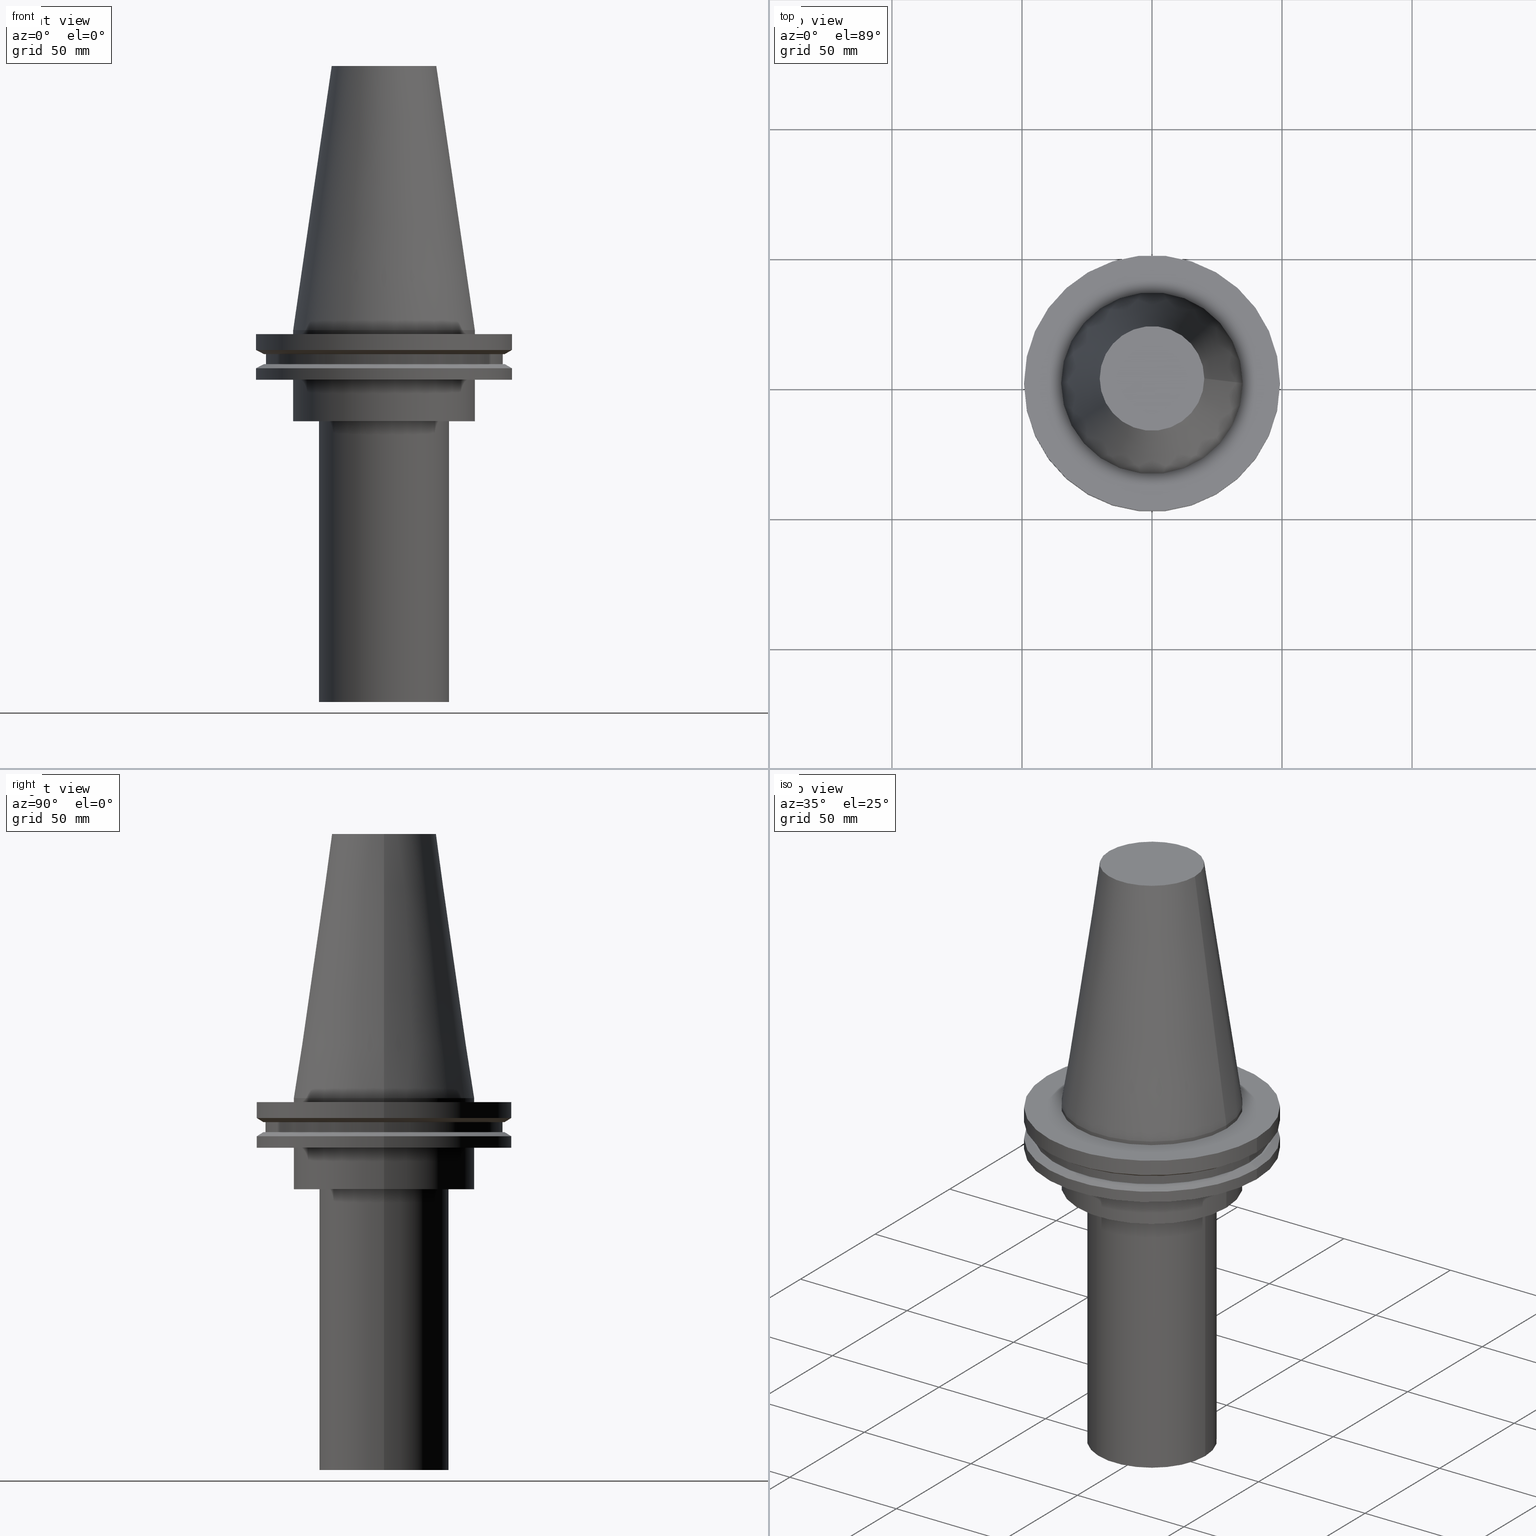
[diagram: canonical four-view strip — front | top / right | iso, engineering-drawing reading convention]
A machine part, canonical four-view strip (front | top / right | iso — engineering-drawing reading convention). The complete STEP part file that produces these views, byte-faithful:
ISO-10303-21;
HEADER;
FILE_DESCRIPTION (( 'STEP AP203' ),
    '1' );
FILE_NAME ('11.368.654.stp',
    '2022-03-09T15:21:08',
    ( '' ),
    ( '' ),
    'SwSTEP 2.0',
    'SolidWorks 2021',
    '' );
FILE_SCHEMA (( 'CONFIG_CONTROL_DESIGN' ));
ENDSEC;

DATA;
#1 = PERSON ( 'UNSPECIFIED', 'UNSPECIFIED', 'UNSPECIFIED', ('UNSPECIFIED'), ('UNSPECIFIED'), ('UNSPECIFIED') ) ;
#2 = PLANE ( 'NONE',  #250 ) ;
#3 = PLANE ( 'NONE',  #393 ) ;
#4 = CIRCLE ( 'NONE', #86, 49.21499999999998920 ) ;
#5 = DIRECTION ( 'NONE',  ( 1.000000000000000000, 0.000000000000000000, 0.000000000000000000 ) ) ;
#6 = CC_DESIGN_SECURITY_CLASSIFICATION ( #162, ( #347 ) ) ;
#7 = EDGE_CURVE ( 'NONE', #302, #302, #285, .T. ) ;
#8 = CARTESIAN_POINT ( 'NONE',  ( 0.000000000000000000, 0.000000000000000000, -7.602389855251287187 ) ) ;
#9 = CARTESIAN_POINT ( 'NONE',  ( 0.000000000000000000, 0.000000000000000000, 0.000000000000000000 ) ) ;
#10 = CARTESIAN_POINT ( 'NONE',  ( 49.21499999999998920, 0.000000000000000000, -14.65761014474876944 ) ) ;
#11 = MANIFOLD_SOLID_BREP ( 'CKB', #140 ) ;
#12 = CARTESIAN_POINT ( 'NONE',  ( 0.000000000000000000, 0.000000000000000000, 101.5999999999999943 ) ) ;
#13 = PERSON_AND_ORGANIZATION_ROLE ( 'creator' ) ;
#14 = CIRCLE ( 'NONE', #333, 34.92499999999999716 ) ;
#15 = ADVANCED_FACE ( 'NONE', ( #245, #247 ), #272, .F. ) ;
#16 = AXIS2_PLACEMENT_3D ( 'NONE', #103, #131, #128 ) ;
#17 = COORDINATED_UNIVERSAL_TIME_OFFSET ( 6, 0, .BEHIND. ) ;
#18 = CALENDAR_DATE ( 2022, 9, 3 ) ;
#19 = APPROVAL_STATUS ( 'not_yet_approved' ) ;
#20 = PRODUCT_DEFINITION ( 'UNKNOWN', '', #347, #360 ) ;
#21 = CARTESIAN_POINT ( 'NONE',  ( 0.000000000000000000, 0.000000000000000000, -9.204999999999991189 ) ) ;
#22 = DIRECTION ( 'NONE',  ( -0.000000000000000000, -0.000000000000000000, 1.000000000000000000 ) ) ;
#23 = ORIENTED_EDGE ( 'NONE', *, *, #76, .F. ) ;
#24 = ADVANCED_FACE ( 'NONE', ( #184, #96 ), #211, .T. ) ;
#25 = AXIS2_PLACEMENT_3D ( 'NONE', #82, #392, #53 ) ;
#26 = FACE_OUTER_BOUND ( 'NONE', #181, .T. ) ;
#27 = EDGE_LOOP ( 'NONE', ( #385 ) ) ;
#28 = DIRECTION ( 'NONE',  ( 1.000000000000000000, 0.000000000000000000, 0.000000000000000000 ) ) ;
#29 = EDGE_LOOP ( 'NONE', ( #146 ) ) ;
#30 = APPLICATION_CONTEXT ( 'configuration controlled 3d designs of mechanical parts and assemblies' ) ;
#31 = ADVANCED_FACE ( 'NONE', ( #125, #337 ), #3, .F. ) ;
#32 = ORIENTED_EDGE ( 'NONE', *, *, #283, .T. ) ;
#33 = PRODUCT_DEFINITION_SHAPE ( 'NONE', 'NONE',  #20 ) ;
#34 = LOCAL_TIME ( 9, 21, 8.000000000000000000, #134 ) ;
#35 = DIRECTION ( 'NONE',  ( 1.000000000000000000, 0.000000000000000000, 0.000000000000000000 ) ) ;
#36 = VERTEX_POINT ( 'NONE', #366 ) ;
#37 = FACE_BOUND ( 'NONE', #382, .T. ) ;
#38 = DIRECTION ( 'NONE',  ( -0.000000000000000000, -0.000000000000000000, 1.000000000000000000 ) ) ;
#39 = ADVANCED_FACE ( 'NONE', ( #370, #216 ), #100, .F. ) ;
#40 = DIRECTION ( 'NONE',  ( -0.000000000000000000, -0.000000000000000000, 1.000000000000000000 ) ) ;
#41 = VERTEX_POINT ( 'NONE', #276 ) ;
#42 = APPROVAL ( #313, 'UNSPECIFIED' ) ;
#43 = DIRECTION ( 'NONE',  ( 1.000000000000000000, 0.000000000000000000, 0.000000000000000000 ) ) ;
#44 = APPROVAL_DATE_TIME ( #220, #42 ) ;
#45 = ADVANCED_FACE ( 'NONE', ( #66, #305 ), #341, .T. ) ;
#46 = APPLICATION_PROTOCOL_DEFINITION ( 'international standard', 'config_control_design', 1994, #110 ) ;
#47 = DIRECTION ( 'NONE',  ( 0.000000000000000000, 0.000000000000000000, -1.000000000000000000 ) ) ;
#48 = DIRECTION ( 'NONE',  ( -1.000000000000000000, 0.000000000000000000, -0.000000000000000000 ) ) ;
#49 = CC_DESIGN_DATE_AND_TIME_ASSIGNMENT ( #73, #344, ( #162 ) ) ;
#50 = EDGE_LOOP ( 'NONE', ( #179 ) ) ;
#51 = DIRECTION ( 'NONE',  ( 1.000000000000000000, 0.000000000000000000, 0.000000000000000000 ) ) ;
#52 = ORIENTED_EDGE ( 'NONE', *, *, #309, .T. ) ;
#53 = DIRECTION ( 'NONE',  ( 1.000000000000000000, 0.000000000000000000, 0.000000000000000000 ) ) ;
#54 = EDGE_LOOP ( 'NONE', ( #57 ) ) ;
#55 = ADVANCED_FACE ( 'NONE', ( #373, #375 ), #280, .T. ) ;
#56 = FACE_OUTER_BOUND ( 'NONE', #178, .T. ) ;
#57 = ORIENTED_EDGE ( 'NONE', *, *, #69, .T. ) ;
#58 = CARTESIAN_POINT ( 'NONE',  ( 0.000000000000000000, 0.000000000000000000, -13.05499999999999794 ) ) ;
#59 = ORIENTED_EDGE ( 'NONE', *, *, #358, .F. ) ;
#60 = CARTESIAN_POINT ( 'NONE',  ( 34.92499999999999716, 0.000000000000000000, -35.00000000000000000 ) ) ;
#61 = AXIS2_PLACEMENT_3D ( 'NONE', #339, #275, #311 ) ;
#62 = DIRECTION ( 'NONE',  ( 1.000000000000000000, 0.000000000000000000, 0.000000000000000000 ) ) ;
#63 = VERTEX_POINT ( 'NONE', #60 ) ;
#64 = CARTESIAN_POINT ( 'NONE',  ( 0.000000000000000000, 49.21499999999998920, -19.04999999999999716 ) ) ;
#65 = CARTESIAN_POINT ( 'NONE',  ( 0.000000000000000000, 0.000000000000000000, 0.000000000000000000 ) ) ;
#66 = FACE_OUTER_BOUND ( 'NONE', #29, .T. ) ;
#67 = CARTESIAN_POINT ( 'NONE',  ( 34.92499999999999005, 0.000000000000000000, -1.499999999999987566 ) ) ;
#68 = FACE_OUTER_BOUND ( 'NONE', #203, .T. ) ;
#69 = EDGE_CURVE ( 'NONE', #41, #41, #227, .T. ) ;
#70 = PERSON_AND_ORGANIZATION_ROLE ( 'creator' ) ;
#71 = DIRECTION ( 'NONE',  ( 1.000000000000000000, 0.000000000000000000, 0.000000000000000000 ) ) ;
#72 = APPROVAL_STATUS ( 'not_yet_approved' ) ;
#73 = DATE_AND_TIME ( #18, #300 ) ;
#74 = AXIS2_PLACEMENT_3D ( 'NONE', #12, #133, #62 ) ;
#75 = CALENDAR_DATE ( 2022, 9, 3 ) ;
#76 = EDGE_CURVE ( 'NONE', #63, #63, #335, .T. ) ;
#77 = PERSON_AND_ORGANIZATION ( #1, #361 ) ;
#78 = CIRCLE ( 'NONE', #352, 25.00000000000000000 ) ;
#79 = AXIS2_PLACEMENT_3D ( 'NONE', #223, #221, #43 ) ;
#80 = FACE_OUTER_BOUND ( 'NONE', #118, .T. ) ;
#81 = ORIENTED_EDGE ( 'NONE', *, *, #351, .F. ) ;
#82 = CARTESIAN_POINT ( 'NONE',  ( 0.000000000000000000, 25.00000000000000000, -143.0000000000000000 ) ) ;
#83 = EDGE_LOOP ( 'NONE', ( #292 ) ) ;
#84 = FACE_OUTER_BOUND ( 'NONE', #205, .T. ) ;
#85 = CIRCLE ( 'NONE', #102, 45.64500000000000313 ) ;
#86 = AXIS2_PLACEMENT_3D ( 'NONE', #254, #232, #173 ) ;
#87 = AXIS2_PLACEMENT_3D ( 'NONE', #58, #244, #374 ) ;
#88 = CARTESIAN_POINT ( 'NONE',  ( 0.000000000000000000, 0.000000000000000000, -13.05499999999999794 ) ) ;
#89 = EDGE_LOOP ( 'NONE', ( #81 ) ) ;
#90 = CARTESIAN_POINT ( 'NONE',  ( 0.000000000000000000, 20.10819343178871321, 101.5999999999999943 ) ) ;
#91 = ORIENTED_EDGE ( 'NONE', *, *, #309, .F. ) ;
#92 = VERTEX_POINT ( 'NONE', #185 ) ;
#93 = FACE_OUTER_BOUND ( 'NONE', #27, .T. ) ;
#94 = ADVANCED_FACE ( 'NONE', ( #68, #93 ), #189, .T. ) ;
#95 = VERTEX_POINT ( 'NONE', #248 ) ;
#96 = FACE_OUTER_BOUND ( 'NONE', #120, .T. ) ;
#97 = VERTEX_POINT ( 'NONE', #274 ) ;
#98 = DIRECTION ( 'NONE',  ( 0.000000000000000000, 0.000000000000000000, -1.000000000000000000 ) ) ;
#99 = VERTEX_POINT ( 'NONE', #215 ) ;
#100 = PLANE ( 'NONE',  #115 ) ;
#101 = ADVANCED_FACE ( 'NONE', ( #218, #191 ), #157, .F. ) ;
#102 = AXIS2_PLACEMENT_3D ( 'NONE', #88, #353, #177 ) ;
#103 = CARTESIAN_POINT ( 'NONE',  ( 0.000000000000000000, 0.000000000000000000, 101.5999999999999943 ) ) ;
#104 = PERSON_AND_ORGANIZATION_ROLE ( 'design_owner' ) ;
#105 = APPROVAL_DATE_TIME ( #251, #368 ) ;
#106 = APPROVAL_ROLE ( '' ) ;
#107 = ADVANCED_FACE ( 'NONE', ( #37, #56 ), #384, .F. ) ;
#108 = APPROVAL_PERSON_ORGANIZATION ( #379, #331, #281 ) ;
#109 = PERSON_AND_ORGANIZATION_ROLE ( 'design_supplier' ) ;
#110 = APPLICATION_CONTEXT ( 'configuration controlled 3d designs of mechanical parts and assemblies' ) ;
#111 = ADVANCED_FACE ( 'NONE', ( #26, #84 ), #288, .T. ) ;
#112 = CYLINDRICAL_SURFACE ( 'NONE', #298, 49.21499999999999631 ) ;
#113 = EDGE_LOOP ( 'NONE', ( #365 ) ) ;
#114 = CC_DESIGN_APPROVAL ( #368, ( #162 ) ) ;
#115 = AXIS2_PLACEMENT_3D ( 'NONE', #64, #303, #71 ) ;
#116 = DIRECTION ( 'NONE',  ( 1.000000000000000000, 0.000000000000000000, 0.000000000000000000 ) ) ;
#117 = ORIENTED_EDGE ( 'NONE', *, *, #214, .F. ) ;
#118 = EDGE_LOOP ( 'NONE', ( #294 ) ) ;
#119 = CARTESIAN_POINT ( 'NONE',  ( 0.000000000000000000, 0.000000000000000000, -9.204999999999991189 ) ) ;
#120 = EDGE_LOOP ( 'NONE', ( #226 ) ) ;
#121 = AXIS2_PLACEMENT_3D ( 'NONE', #387, #228, #116 ) ;
#122 = FACE_OUTER_BOUND ( 'NONE', #296, .T. ) ;
#123 = EDGE_LOOP ( 'NONE', ( #328 ) ) ;
#124 = DIRECTION ( 'NONE',  ( 1.000000000000000000, 0.000000000000000000, 0.000000000000000000 ) ) ;
#125 = FACE_BOUND ( 'NONE', #289, .T. ) ;
#126 = CC_DESIGN_PERSON_AND_ORGANIZATION_ASSIGNMENT ( #77, #137, ( #162 ) ) ;
#127 = DIRECTION ( 'NONE',  ( -0.000000000000000000, -0.000000000000000000, 1.000000000000000000 ) ) ;
#128 = DIRECTION ( 'NONE',  ( 1.000000000000000000, 0.000000000000000000, 0.000000000000000000 ) ) ;
#129 = CIRCLE ( 'NONE', #208, 20.10819343178871321 ) ;
#130 = DIRECTION ( 'NONE',  ( 1.000000000000000000, 0.000000000000000000, 0.000000000000000000 ) ) ;
#131 = DIRECTION ( 'NONE',  ( -0.000000000000000000, -0.000000000000000000, 1.000000000000000000 ) ) ;
#132 = CARTESIAN_POINT ( 'NONE',  ( 49.21500000000000341, 0.000000000000000000, -7.602389855251287187 ) ) ;
#133 = DIRECTION ( 'NONE',  ( -0.000000000000000000, -0.000000000000000000, 1.000000000000000000 ) ) ;
#134 = COORDINATED_UNIVERSAL_TIME_OFFSET ( 6, 0, .BEHIND. ) ;
#135 = CALENDAR_DATE ( 2022, 9, 3 ) ;
#136 = EDGE_CURVE ( 'NONE', #36, #36, #4, .T. ) ;
#137 = PERSON_AND_ORGANIZATION_ROLE ( 'classification_officer' ) ;
#138 = AXIS2_PLACEMENT_3D ( 'NONE', #389, #355, #264 ) ;
#139 = CIRCLE ( 'NONE', #314, 49.21499999999999631 ) ;
#140 = CLOSED_SHELL ( 'NONE', ( #55, #316, #31, #94, #39, #142, #167, #101, #45, #15, #199, #235, #107, #24, #111, #175 ) ) ;
#141 = PERSON_AND_ORGANIZATION ( #1, #361 ) ;
#142 = ADVANCED_FACE ( 'NONE', ( #230, #201 ), #153, .T. ) ;
#143 = DIRECTION ( 'NONE',  ( 1.000000000000000000, 0.000000000000000000, 0.000000000000000000 ) ) ;
#144 = EDGE_LOOP ( 'NONE', ( #265 ) ) ;
#145 = ADVANCED_BREP_SHAPE_REPRESENTATION ( '11.368.654', ( #11, #79 ), #165 ) ;
#146 = ORIENTED_EDGE ( 'NONE', *, *, #69, .F. ) ;
#147 = LOCAL_TIME ( 9, 21, 8.000000000000000000, #170 ) ;
#148 = DIRECTION ( 'NONE',  ( 1.000000000000000000, 0.000000000000000000, 0.000000000000000000 ) ) ;
#149 = EDGE_LOOP ( 'NONE', ( #59 ) ) ;
#150 = CC_DESIGN_PERSON_AND_ORGANIZATION_ASSIGNMENT ( #345, #104, ( #268 ) ) ;
#151 = CARTESIAN_POINT ( 'NONE',  ( 0.000000000000000000, 0.000000000000000000, -19.04999999999999716 ) ) ;
#152 = ORIENTED_EDGE ( 'NONE', *, *, #283, .F. ) ;
#153 = CYLINDRICAL_SURFACE ( 'NONE', #138, 49.21499999999998920 ) ;
#154 = ORIENTED_EDGE ( 'NONE', *, *, #346, .T. ) ;
#155 = CONICAL_SURFACE ( 'NONE', #376, 46.43919780457007818, 1.047197551196575205 ) ;
#156 = APPROVAL_PERSON_ORGANIZATION ( #193, #368, #106 ) ;
#157 = PLANE ( 'NONE',  #209 ) ;
#158 = VERTEX_POINT ( 'NONE', #132 ) ;
#159 = DIRECTION ( 'NONE',  ( 0.000000000000000000, -0.000000000000000000, 1.000000000000000000 ) ) ;
#160 = CARTESIAN_POINT ( 'NONE',  ( 25.00000000000000000, 0.000000000000000000, -35.00000000000000000 ) ) ;
#161 = AXIS2_PLACEMENT_3D ( 'NONE', #119, #286, #362 ) ;
#162 = SECURITY_CLASSIFICATION ( '', '', #349 ) ;
#163 = VERTEX_POINT ( 'NONE', #160 ) ;
#164 = DIRECTION ( 'NONE',  ( -0.000000000000000000, -0.000000000000000000, 1.000000000000000000 ) ) ;
#165 =( GEOMETRIC_REPRESENTATION_CONTEXT ( 3 ) GLOBAL_UNCERTAINTY_ASSIGNED_CONTEXT ( ( #257 ) ) GLOBAL_UNIT_ASSIGNED_CONTEXT ( ( #304, #395, #212 ) ) REPRESENTATION_CONTEXT ( 'NONE', 'WORKASPACE' ) );
#166 = AXIS2_PLACEMENT_3D ( 'NONE', #307, #40, #278 ) ;
#167 = ADVANCED_FACE ( 'NONE', ( #290, #80 ), #233, .T. ) ;
#168 = CALENDAR_DATE ( 2022, 9, 3 ) ;
#169 = PRODUCT_RELATED_PRODUCT_CATEGORY ( 'detail', '', ( #268 ) ) ;
#170 = COORDINATED_UNIVERSAL_TIME_OFFSET ( 6, 0, .BEHIND. ) ;
#171 = CALENDAR_DATE ( 2022, 9, 3 ) ;
#172 = FACE_BOUND ( 'NONE', #356, .T. ) ;
#173 = DIRECTION ( 'NONE',  ( 1.000000000000000000, 0.000000000000000000, 0.000000000000000000 ) ) ;
#174 = ORIENTED_EDGE ( 'NONE', *, *, #187, .F. ) ;
#175 = ADVANCED_FACE ( 'NONE', ( #381 ), #260, .F. ) ;
#176 = CC_DESIGN_APPROVAL ( #42, ( #20 ) ) ;
#177 = DIRECTION ( 'NONE',  ( 1.000000000000000000, 0.000000000000000000, 0.000000000000000000 ) ) ;
#178 = EDGE_LOOP ( 'NONE', ( #154 ) ) ;
#179 = ORIENTED_EDGE ( 'NONE', *, *, #187, .T. ) ;
#180 = EDGE_CURVE ( 'NONE', #99, #99, #323, .T. ) ;
#181 = EDGE_LOOP ( 'NONE', ( #322 ) ) ;
#182 = DIRECTION ( 'NONE',  ( -1.000000000000000000, 0.000000000000000000, -0.000000000000000000 ) ) ;
#183 = VERTEX_POINT ( 'NONE', #266 ) ;
#184 = FACE_OUTER_BOUND ( 'NONE', #149, .T. ) ;
#185 = CARTESIAN_POINT ( 'NONE',  ( 25.00000000000000000, 0.000000000000000000, -143.0000000000000000 ) ) ;
#186 = DIRECTION ( 'NONE',  ( 1.000000000000000000, 0.000000000000000000, 0.000000000000000000 ) ) ;
#187 = EDGE_CURVE ( 'NONE', #306, #306, #85, .T. ) ;
#188 = DIRECTION ( 'NONE',  ( 0.000000000000000000, 0.000000000000000000, -1.000000000000000000 ) ) ;
#189 = CYLINDRICAL_SURFACE ( 'NONE', #74, 34.92499999999999716 ) ;
#190 = APPROVAL_DATE_TIME ( #378, #331 ) ;
#191 = FACE_OUTER_BOUND ( 'NONE', #123, .T. ) ;
#192 = CC_DESIGN_PERSON_AND_ORGANIZATION_ASSIGNMENT ( #350, #109, ( #347 ) ) ;
#193 = PERSON_AND_ORGANIZATION ( #1, #361 ) ;
#194 = APPLICATION_PROTOCOL_DEFINITION ( 'international standard', 'config_control_design', 1994, #30 ) ;
#195 = AXIS2_PLACEMENT_3D ( 'NONE', #327, #225, #258 ) ;
#196 = DIRECTION ( 'NONE',  ( -0.000000000000000000, -0.000000000000000000, 1.000000000000000000 ) ) ;
#197 = EDGE_LOOP ( 'NONE', ( #52 ) ) ;
#198 = FACE_OUTER_BOUND ( 'NONE', #83, .T. ) ;
#199 = ADVANCED_FACE ( 'NONE', ( #122, #172 ), #155, .T. ) ;
#200 = ORIENTED_EDGE ( 'NONE', *, *, #7, .F. ) ;
#201 = FACE_OUTER_BOUND ( 'NONE', #113, .T. ) ;
#202 = CARTESIAN_POINT ( 'NONE',  ( 0.000000000000000000, 0.000000000000000000, -14.65761014474876944 ) ) ;
#203 = EDGE_LOOP ( 'NONE', ( #152 ) ) ;
#204 = CARTESIAN_POINT ( 'NONE',  ( 34.92499999999999005, 0.000000000000000000, 0.000000000000000000 ) ) ;
#205 = EDGE_LOOP ( 'NONE', ( #330 ) ) ;
#206 = CARTESIAN_POINT ( 'NONE',  ( 20.10819343178871321, 0.000000000000000000, 101.5999999999999801 ) ) ;
#207 = CARTESIAN_POINT ( 'NONE',  ( 0.000000000000000000, 45.64500000000000313, -13.05499999999999794 ) ) ;
#208 = AXIS2_PLACEMENT_3D ( 'NONE', #369, #310, #124 ) ;
#209 = AXIS2_PLACEMENT_3D ( 'NONE', #207, #334, #182 ) ;
#210 = VERTEX_POINT ( 'NONE', #204 ) ;
#211 = CYLINDRICAL_SURFACE ( 'NONE', #16, 34.92499999999999005 ) ;
#212 =( NAMED_UNIT ( * ) SI_UNIT ( $, .STERADIAN. ) SOLID_ANGLE_UNIT ( ) );
#213 = DIRECTION ( 'NONE',  ( -1.000000000000000000, 0.000000000000000000, 0.000000000000000000 ) ) ;
#214 = EDGE_CURVE ( 'NONE', #336, #336, #380, .T. ) ;
#215 = CARTESIAN_POINT ( 'NONE',  ( 46.43919780457007818, 0.000000000000000000, -9.204999999999991189 ) ) ;
#216 = FACE_BOUND ( 'NONE', #354, .T. ) ;
#217 = AXIS2_PLACEMENT_3D ( 'NONE', #329, #127, #338 ) ;
#218 = FACE_BOUND ( 'NONE', #325, .T. ) ;
#219 = CC_DESIGN_DATE_AND_TIME_ASSIGNMENT ( #279, #252, ( #20 ) ) ;
#220 = DATE_AND_TIME ( #75, #259 ) ;
#221 = DIRECTION ( 'NONE',  ( 0.000000000000000000, 0.000000000000000000, 1.000000000000000000 ) ) ;
#222 = CIRCLE ( 'NONE', #217, 25.00000000000000000 ) ;
#223 = CARTESIAN_POINT ( 'NONE',  ( 0.000000000000000000, 0.000000000000000000, 0.000000000000000000 ) ) ;
#224 = CIRCLE ( 'NONE', #383, 49.21500000000000341 ) ;
#225 = DIRECTION ( 'NONE',  ( -0.000000000000000000, -0.000000000000000000, 1.000000000000000000 ) ) ;
#226 = ORIENTED_EDGE ( 'NONE', *, *, #214, .T. ) ;
#227 = CIRCLE ( 'NONE', #61, 45.64500000000000313 ) ;
#228 = DIRECTION ( 'NONE',  ( -0.000000000000000000, -0.000000000000000000, 1.000000000000000000 ) ) ;
#229 = EDGE_LOOP ( 'NONE', ( #321 ) ) ;
#230 = FACE_OUTER_BOUND ( 'NONE', #390, .T. ) ;
#231 = ORIENTED_EDGE ( 'NONE', *, *, #358, .T. ) ;
#232 = DIRECTION ( 'NONE',  ( -0.000000000000000000, -0.000000000000000000, 1.000000000000000000 ) ) ;
#233 = CONICAL_SURFACE ( 'NONE', #318, 49.21499999999998920, 1.047197551196554333 ) ;
#234 = ORIENTED_EDGE ( 'NONE', *, *, #326, .T. ) ;
#235 = ADVANCED_FACE ( 'NONE', ( #198, #236 ), #112, .T. ) ;
#236 = FACE_OUTER_BOUND ( 'NONE', #197, .T. ) ;
#237 = EDGE_LOOP ( 'NONE', ( #263 ) ) ;
#238 = DIRECTION ( 'NONE',  ( -0.000000000000000000, -0.000000000000000000, 1.000000000000000000 ) ) ;
#239 = CARTESIAN_POINT ( 'NONE',  ( 0.000000000000000000, 34.92499999999999716, -35.00000000000000000 ) ) ;
#240 = FACE_OUTER_BOUND ( 'NONE', #237, .T. ) ;
#241 = DIRECTION ( 'NONE',  ( 0.000000000000000000, -0.000000000000000000, 1.000000000000000000 ) ) ;
#242 = CC_DESIGN_APPROVAL ( #331, ( #347 ) ) ;
#243 = AXIS2_PLACEMENT_3D ( 'NONE', #249, #38, #367 ) ;
#244 = DIRECTION ( 'NONE',  ( -0.000000000000000000, -0.000000000000000000, 1.000000000000000000 ) ) ;
#245 = FACE_OUTER_BOUND ( 'NONE', #144, .T. ) ;
#246 = CARTESIAN_POINT ( 'NONE',  ( 0.000000000000000000, 0.000000000000000000, -1.499999999999987566 ) ) ;
#247 = FACE_BOUND ( 'NONE', #54, .T. ) ;
#248 = CARTESIAN_POINT ( 'NONE',  ( 34.92499999999999716, 0.000000000000000000, -19.04999999999999716 ) ) ;
#249 = CARTESIAN_POINT ( 'NONE',  ( 0.000000000000000000, 0.000000000000000000, 101.5999999999999943 ) ) ;
#250 = AXIS2_PLACEMENT_3D ( 'NONE', #90, #188, #269 ) ;
#251 = DATE_AND_TIME ( #168, #34 ) ;
#252 = DATE_TIME_ROLE ( 'creation_date' ) ;
#253 = COORDINATED_UNIVERSAL_TIME_OFFSET ( 6, 0, .BEHIND. ) ;
#254 = CARTESIAN_POINT ( 'NONE',  ( 0.000000000000000000, 0.000000000000000000, -19.04999999999999716 ) ) ;
#255 = EDGE_LOOP ( 'NONE', ( #388 ) ) ;
#256 = CC_DESIGN_PERSON_AND_ORGANIZATION_ASSIGNMENT ( #141, #13, ( #347 ) ) ;
#257 = UNCERTAINTY_MEASURE_WITH_UNIT (LENGTH_MEASURE( 1.000000000000000082E-05 ), #304, 'distance_accuracy_value', 'NONE');
#258 = DIRECTION ( 'NONE',  ( 1.000000000000000000, 0.000000000000000000, 0.000000000000000000 ) ) ;
#259 = LOCAL_TIME ( 9, 21, 8.000000000000000000, #17 ) ;
#260 = PLANE ( 'NONE',  #25 ) ;
#261 = EDGE_LOOP ( 'NONE', ( #231 ) ) ;
#262 = DIRECTION ( 'NONE',  ( -0.000000000000000000, -0.000000000000000000, 1.000000000000000000 ) ) ;
#263 = ORIENTED_EDGE ( 'NONE', *, *, #351, .T. ) ;
#264 = DIRECTION ( 'NONE',  ( 1.000000000000000000, 0.000000000000000000, 0.000000000000000000 ) ) ;
#265 = ORIENTED_EDGE ( 'NONE', *, *, #180, .F. ) ;
#266 = CARTESIAN_POINT ( 'NONE',  ( 46.43919780457007818, 0.000000000000000000, -13.05499999999999794 ) ) ;
#267 = CARTESIAN_POINT ( 'NONE',  ( 0.000000000000000000, 46.43919780457007818, -9.204999999999998295 ) ) ;
#268 = PRODUCT ( '11.368.654', '11.368.654', '', ( #343 ) ) ;
#269 = DIRECTION ( 'NONE',  ( -1.000000000000000000, 0.000000000000000000, -0.000000000000000000 ) ) ;
#270 = DIRECTION ( 'NONE',  ( -0.000000000000000000, -0.000000000000000000, 1.000000000000000000 ) ) ;
#271 = VERTEX_POINT ( 'NONE', #206 ) ;
#272 = PLANE ( 'NONE',  #342 ) ;
#273 = APPROVAL_PERSON_ORGANIZATION ( #317, #42, #282 ) ;
#274 = CARTESIAN_POINT ( 'NONE',  ( 49.21499999999999631, 0.000000000000000000, -1.499999999999987566 ) ) ;
#275 = DIRECTION ( 'NONE',  ( -0.000000000000000000, -0.000000000000000000, 1.000000000000000000 ) ) ;
#276 = CARTESIAN_POINT ( 'NONE',  ( 45.64500000000000313, 0.000000000000000000, -9.204999999999991189 ) ) ;
#277 = EDGE_CURVE ( 'NONE', #92, #92, #78, .T. ) ;
#278 = DIRECTION ( 'NONE',  ( 1.000000000000000000, 0.000000000000000000, 0.000000000000000000 ) ) ;
#279 = DATE_AND_TIME ( #171, #147 ) ;
#280 = CONICAL_SURFACE ( 'NONE', #301, 34.92499999999999005, 0.1448138465474119452 ) ;
#281 = APPROVAL_ROLE ( '' ) ;
#282 = APPROVAL_ROLE ( '' ) ;
#283 = EDGE_CURVE ( 'NONE', #95, #95, #14, .T. ) ;
#284 = PERSON_AND_ORGANIZATION ( #1, #361 ) ;
#285 = CIRCLE ( 'NONE', #315, 49.21499999999998920 ) ;
#286 = DIRECTION ( 'NONE',  ( -0.000000000000000000, -0.000000000000000000, 1.000000000000000000 ) ) ;
#287 = CC_DESIGN_PERSON_AND_ORGANIZATION_ASSIGNMENT ( #284, #70, ( #20 ) ) ;
#288 = CYLINDRICAL_SURFACE ( 'NONE', #121, 25.00000000000000000 ) ;
#289 = EDGE_LOOP ( 'NONE', ( #234 ) ) ;
#290 = FACE_BOUND ( 'NONE', #229, .T. ) ;
#291 = AXIS2_PLACEMENT_3D ( 'NONE', #65, #164, #130 ) ;
#292 = ORIENTED_EDGE ( 'NONE', *, *, #346, .F. ) ;
#293 = DIRECTION ( 'NONE',  ( -0.000000000000000000, -0.000000000000000000, 1.000000000000000000 ) ) ;
#294 = ORIENTED_EDGE ( 'NONE', *, *, #7, .T. ) ;
#295 = CARTESIAN_POINT ( 'NONE',  ( 0.000000000000000000, 49.21499999999999631, -1.499999999999992895 ) ) ;
#296 = EDGE_LOOP ( 'NONE', ( #91 ) ) ;
#297 = DIRECTION ( 'NONE',  ( 1.000000000000000000, 0.000000000000000000, 0.000000000000000000 ) ) ;
#298 = AXIS2_PLACEMENT_3D ( 'NONE', #364, #196, #148 ) ;
#299 = EDGE_LOOP ( 'NONE', ( #359 ) ) ;
#300 = LOCAL_TIME ( 9, 21, 8.000000000000000000, #253 ) ;
#301 = AXIS2_PLACEMENT_3D ( 'NONE', #9, #98, #213 ) ;
#302 = VERTEX_POINT ( 'NONE', #10 ) ;
#303 = DIRECTION ( 'NONE',  ( 0.000000000000000000, -0.000000000000000000, 1.000000000000000000 ) ) ;
#304 =( LENGTH_UNIT ( ) NAMED_UNIT ( * ) SI_UNIT ( .MILLI., .METRE. ) );
#305 = FACE_OUTER_BOUND ( 'NONE', #50, .T. ) ;
#306 = VERTEX_POINT ( 'NONE', #340 ) ;
#307 = CARTESIAN_POINT ( 'NONE',  ( 0.000000000000000000, 0.000000000000000000, -35.00000000000000000 ) ) ;
#308 = CIRCLE ( 'NONE', #291, 34.92499999999999005 ) ;
#309 = EDGE_CURVE ( 'NONE', #158, #158, #224, .T. ) ;
#310 = DIRECTION ( 'NONE',  ( -0.000000000000000000, -0.000000000000000000, 1.000000000000000000 ) ) ;
#311 = DIRECTION ( 'NONE',  ( 1.000000000000000000, 0.000000000000000000, 0.000000000000000000 ) ) ;
#312 = COORDINATED_UNIVERSAL_TIME_OFFSET ( 6, 0, .BEHIND. ) ;
#313 = APPROVAL_STATUS ( 'not_yet_approved' ) ;
#314 = AXIS2_PLACEMENT_3D ( 'NONE', #246, #332, #297 ) ;
#315 = AXIS2_PLACEMENT_3D ( 'NONE', #202, #270, #186 ) ;
#316 = ADVANCED_FACE ( 'NONE', ( #240 ), #2, .F. ) ;
#317 = PERSON_AND_ORGANIZATION ( #1, #361 ) ;
#318 = AXIS2_PLACEMENT_3D ( 'NONE', #320, #47, #324 ) ;
#319 = CARTESIAN_POINT ( 'NONE',  ( 0.000000000000000000, 0.000000000000000000, -143.0000000000000000 ) ) ;
#320 = CARTESIAN_POINT ( 'NONE',  ( 0.000000000000000000, 0.000000000000000000, -14.65761014474876944 ) ) ;
#321 = ORIENTED_EDGE ( 'NONE', *, *, #386, .F. ) ;
#322 = ORIENTED_EDGE ( 'NONE', *, *, #326, .F. ) ;
#323 = CIRCLE ( 'NONE', #161, 46.43919780457007818 ) ;
#324 = DIRECTION ( 'NONE',  ( -1.000000000000000000, 0.000000000000000000, 0.000000000000000000 ) ) ;
#325 = EDGE_LOOP ( 'NONE', ( #174 ) ) ;
#326 = EDGE_CURVE ( 'NONE', #163, #163, #222, .T. ) ;
#327 = CARTESIAN_POINT ( 'NONE',  ( 0.000000000000000000, 0.000000000000000000, -1.499999999999987566 ) ) ;
#328 = ORIENTED_EDGE ( 'NONE', *, *, #386, .T. ) ;
#329 = CARTESIAN_POINT ( 'NONE',  ( 0.000000000000000000, 0.000000000000000000, -35.00000000000000000 ) ) ;
#330 = ORIENTED_EDGE ( 'NONE', *, *, #277, .T. ) ;
#331 = APPROVAL ( #19, 'UNSPECIFIED' ) ;
#332 = DIRECTION ( 'NONE',  ( -0.000000000000000000, -0.000000000000000000, 1.000000000000000000 ) ) ;
#333 = AXIS2_PLACEMENT_3D ( 'NONE', #151, #262, #143 ) ;
#334 = DIRECTION ( 'NONE',  ( 0.000000000000000000, 0.000000000000000000, -1.000000000000000000 ) ) ;
#335 = CIRCLE ( 'NONE', #166, 34.92499999999999716 ) ;
#336 = VERTEX_POINT ( 'NONE', #67 ) ;
#337 = FACE_OUTER_BOUND ( 'NONE', #363, .T. ) ;
#338 = DIRECTION ( 'NONE',  ( 1.000000000000000000, 0.000000000000000000, 0.000000000000000000 ) ) ;
#339 = CARTESIAN_POINT ( 'NONE',  ( 0.000000000000000000, 0.000000000000000000, -9.204999999999991189 ) ) ;
#340 = CARTESIAN_POINT ( 'NONE',  ( 45.64500000000000313, 0.000000000000000000, -13.05499999999999794 ) ) ;
#341 = CYLINDRICAL_SURFACE ( 'NONE', #243, 45.64500000000000313 ) ;
#342 = AXIS2_PLACEMENT_3D ( 'NONE', #267, #159, #35 ) ;
#343 = MECHANICAL_CONTEXT ( 'NONE', #30, 'mechanical' ) ;
#344 = DATE_TIME_ROLE ( 'classification_date' ) ;
#345 = PERSON_AND_ORGANIZATION ( #1, #361 ) ;
#346 = EDGE_CURVE ( 'NONE', #97, #97, #139, .T. ) ;
#347 = PRODUCT_DEFINITION_FORMATION_WITH_SPECIFIED_SOURCE ( 'ANY', '', #268, .NOT_KNOWN. ) ;
#348 = AXIS2_PLACEMENT_3D ( 'NONE', #295, #357, #48 ) ;
#349 = SECURITY_CLASSIFICATION_LEVEL ( 'unclassified' ) ;
#350 = PERSON_AND_ORGANIZATION ( #1, #361 ) ;
#351 = EDGE_CURVE ( 'NONE', #271, #271, #129, .T. ) ;
#352 = AXIS2_PLACEMENT_3D ( 'NONE', #319, #293, #28 ) ;
#353 = DIRECTION ( 'NONE',  ( -0.000000000000000000, -0.000000000000000000, 1.000000000000000000 ) ) ;
#354 = EDGE_LOOP ( 'NONE', ( #32 ) ) ;
#355 = DIRECTION ( 'NONE',  ( -0.000000000000000000, -0.000000000000000000, 1.000000000000000000 ) ) ;
#356 = EDGE_LOOP ( 'NONE', ( #394 ) ) ;
#357 = DIRECTION ( 'NONE',  ( 0.000000000000000000, 0.000000000000000000, -1.000000000000000000 ) ) ;
#358 = EDGE_CURVE ( 'NONE', #210, #210, #308, .T. ) ;
#359 = ORIENTED_EDGE ( 'NONE', *, *, #277, .F. ) ;
#360 = DESIGN_CONTEXT ( 'detailed design', #110, 'design' ) ;
#361 = ORGANIZATION ( 'UNSPECIFIED', 'UNSPECIFIED', '' ) ;
#362 = DIRECTION ( 'NONE',  ( 1.000000000000000000, 0.000000000000000000, 0.000000000000000000 ) ) ;
#363 = EDGE_LOOP ( 'NONE', ( #23 ) ) ;
#364 = CARTESIAN_POINT ( 'NONE',  ( 0.000000000000000000, 0.000000000000000000, 101.5999999999999943 ) ) ;
#365 = ORIENTED_EDGE ( 'NONE', *, *, #136, .T. ) ;
#366 = CARTESIAN_POINT ( 'NONE',  ( 49.21499999999998920, 0.000000000000000000, -19.04999999999999716 ) ) ;
#367 = DIRECTION ( 'NONE',  ( 1.000000000000000000, 0.000000000000000000, 0.000000000000000000 ) ) ;
#368 = APPROVAL ( #72, 'UNSPECIFIED' ) ;
#369 = CARTESIAN_POINT ( 'NONE',  ( 0.000000000000000000, 0.000000000000000000, 101.5999999999999801 ) ) ;
#370 = FACE_OUTER_BOUND ( 'NONE', #255, .T. ) ;
#371 = LOCAL_TIME ( 9, 21, 8.000000000000000000, #312 ) ;
#372 = DIRECTION ( 'NONE',  ( 1.000000000000000000, 0.000000000000000000, 0.000000000000000000 ) ) ;
#373 = FACE_BOUND ( 'NONE', #89, .T. ) ;
#374 = DIRECTION ( 'NONE',  ( 1.000000000000000000, 0.000000000000000000, 0.000000000000000000 ) ) ;
#375 = FACE_OUTER_BOUND ( 'NONE', #261, .T. ) ;
#376 = AXIS2_PLACEMENT_3D ( 'NONE', #21, #22, #51 ) ;
#377 = SHAPE_DEFINITION_REPRESENTATION ( #33, #145 ) ;
#378 = DATE_AND_TIME ( #135, #371 ) ;
#379 = PERSON_AND_ORGANIZATION ( #1, #361 ) ;
#380 = CIRCLE ( 'NONE', #195, 34.92499999999999005 ) ;
#381 = FACE_OUTER_BOUND ( 'NONE', #299, .T. ) ;
#382 = EDGE_LOOP ( 'NONE', ( #117 ) ) ;
#383 = AXIS2_PLACEMENT_3D ( 'NONE', #8, #238, #372 ) ;
#384 = PLANE ( 'NONE',  #348 ) ;
#385 = ORIENTED_EDGE ( 'NONE', *, *, #76, .T. ) ;
#386 = EDGE_CURVE ( 'NONE', #183, #183, #391, .T. ) ;
#387 = CARTESIAN_POINT ( 'NONE',  ( 0.000000000000000000, 0.000000000000000000, 0.000000000000000000 ) ) ;
#388 = ORIENTED_EDGE ( 'NONE', *, *, #136, .F. ) ;
#389 = CARTESIAN_POINT ( 'NONE',  ( 0.000000000000000000, 0.000000000000000000, 101.5999999999999943 ) ) ;
#390 = EDGE_LOOP ( 'NONE', ( #200 ) ) ;
#391 = CIRCLE ( 'NONE', #87, 46.43919780457007818 ) ;
#392 = DIRECTION ( 'NONE',  ( 0.000000000000000000, -0.000000000000000000, 1.000000000000000000 ) ) ;
#393 = AXIS2_PLACEMENT_3D ( 'NONE', #239, #241, #5 ) ;
#394 = ORIENTED_EDGE ( 'NONE', *, *, #180, .T. ) ;
#395 =( NAMED_UNIT ( * ) PLANE_ANGLE_UNIT ( ) SI_UNIT ( $, .RADIAN. ) );
ENDSEC;
END-ISO-10303-21;
